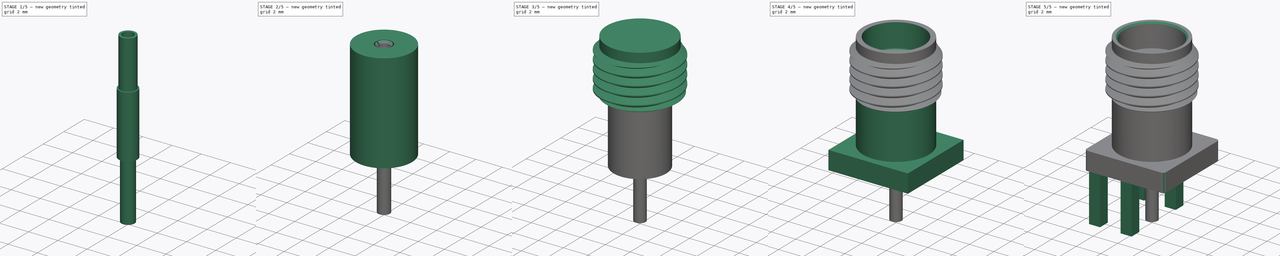
[diagram: build sequence overview — one tinted view per stage of 5, left to right]
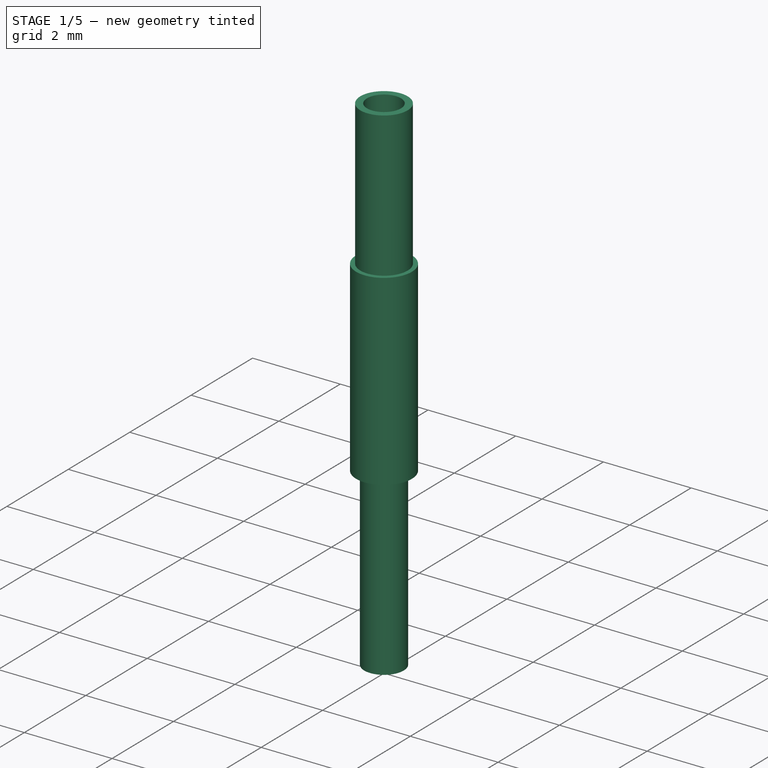
[diagram: stage 1 of 5 — iso view after this stage's code; geometry added in this stage tinted green]
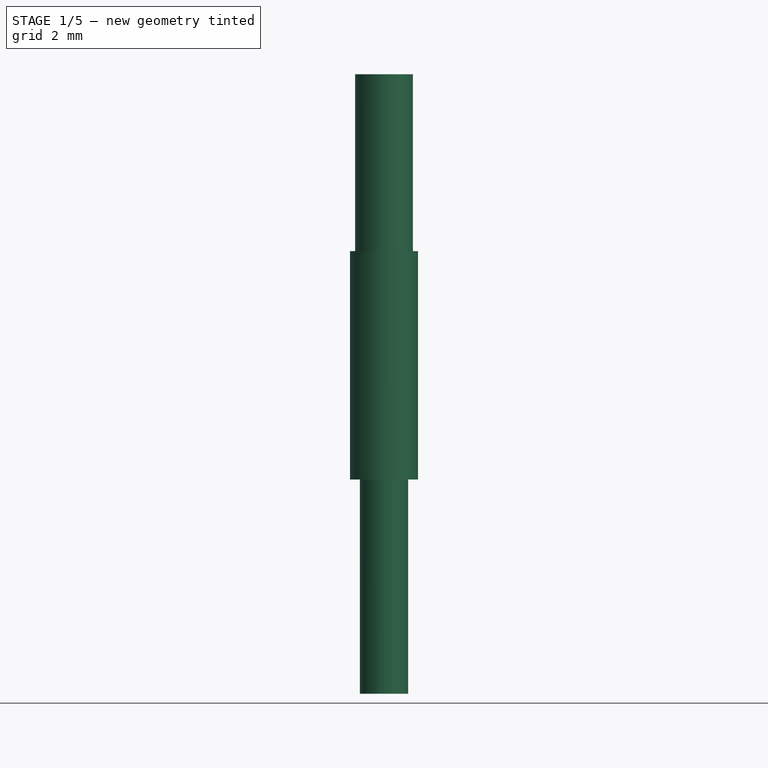
[diagram: stage 1 of 5 — front view after this stage's code; geometry added in this stage tinted green]
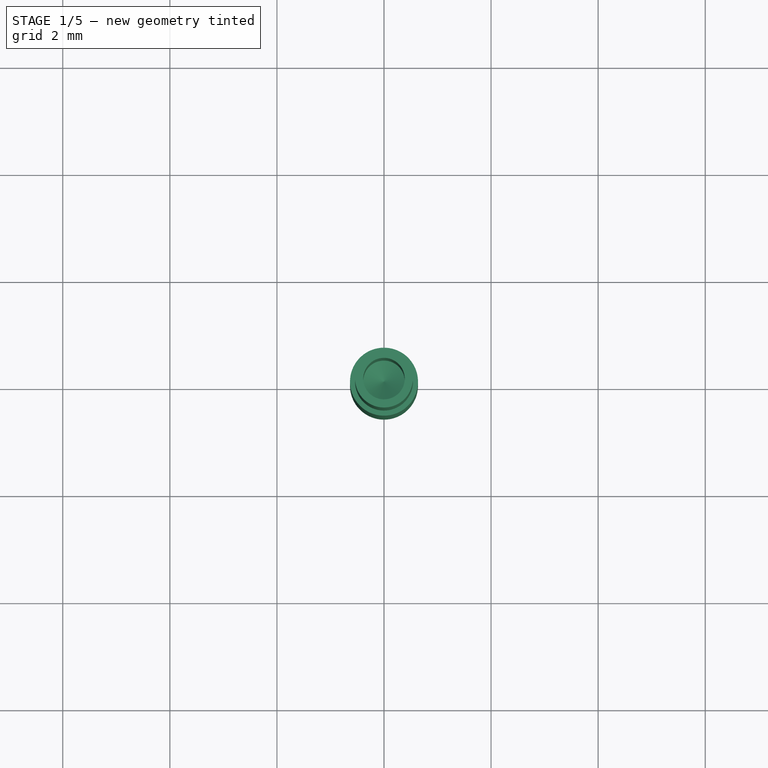
[diagram: stage 1 of 5 — top view after this stage's code; geometry added in this stage tinted green]
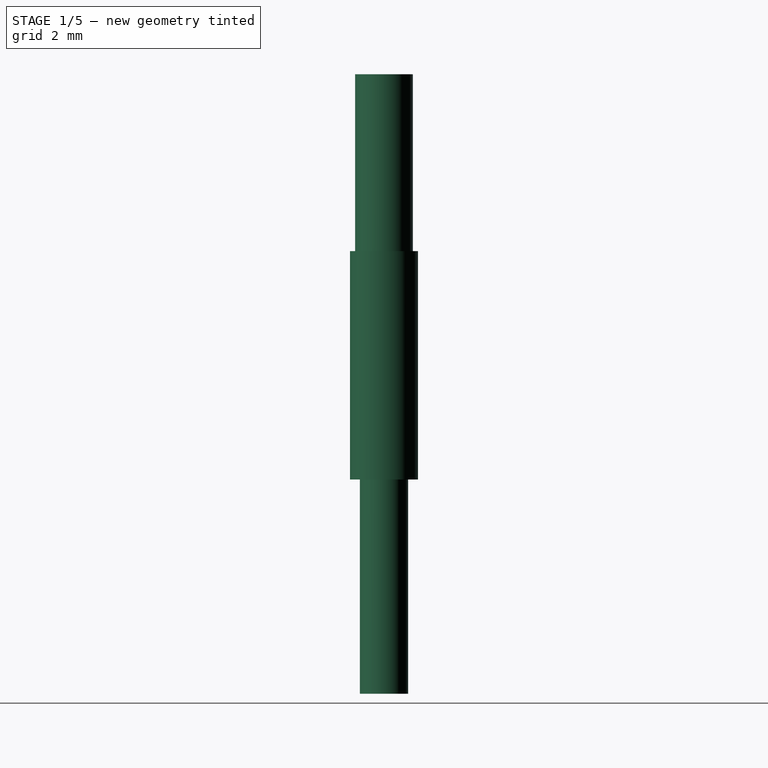
[diagram: stage 1 of 5 — right view after this stage's code; geometry added in this stage tinted green]
FCSTD DOCUMENT  (FreeCAD 2021.504R24301 +3597 (Git))
Label: SMA_female_edge_6.5x6.5_3
License: All rights reserved
LicenseURL: http://en.wikipedia.org/wiki/All_rights_reserved
objects: PartDesign::AdditiveCylinder×7, PartDesign::Plane×6, Sketcher::SketchObject×4, PartDesign::Hole×4, PartDesign::Body×3, PartDesign::Chamfer×2, Part::SubShapeBinder×2, PartDesign::SubtractiveHelix×1, PartDesign::Groove×1, PartDesign::AdditivePrism×1, PartDesign::Pad×1, PartDesign::Mirrored×1, PartDesign::Fillet×1, PartDesign::Pocket×1
note: 75 computed .brp shape members not serialized (recipe doc carries the construction recipe); baked Part::Feature solids carry a one-line shape summary decoded from their .brp

FEATURE [PartDesign::Body] Body001  label="Dielectric"
  AutoGroupSolids = false
  ExportMode = 0
  Group = -> [Import,Cylinder003,Hole002]
  Origin = -> Origin001
  Placement = pos=(0,-4,0.45) rot=(0.57735,-0.57735,0.57735;2.0944rad)
  Tip = -> Hole002
  _ExportChildren = -> [Import,Hole002]
  _GroupVersion = 1
FEATURE [Part::SubShapeBinder] Import001  label="Import001(Legs DP)"
  BindCopyOnChange = 0
  BindMode = 0
  ClaimChildren = false
  Context = -> Body002 [Import001.]
  FillStyle = 0
  Fuse = false
  MakeFace = false
  PartialLoad = false
  Relative = true
  Support = -> [Body[DatumPlane004.]]
  _Version = 8
FEATURE [PartDesign::AdditiveCylinder] Cylinder004  label="Core"
  Angle = 360
  AttacherType = Attacher::AttachEngine3D
  Height = 4.2676
  MapMode = 5
  NewSolid = false
  Placement = pos=(-5e-16,2e-16,-1.5) rot=(0,0,1;3.14159rad)
  Radius = 0.635
  Support = -> [Import001]
  Suppress = false
FEATURE [PartDesign::AdditiveCylinder] Cylinder005  label="Terminal"
  Angle = 360
  AttacherType = Attacher::AttachEngine3D
  BaseFeature = -> Cylinder004
  Height = 4
  MapMode = 5
  NewSolid = false
  Placement = pos=(-5e-16,2e-16,-1.5) rot=(1,0,0;3.14159rad)
  Radius = 0.45
  Support = -> [Import001]
  Suppress = false
FEATURE [PartDesign::Plane] DatumPlane005  label="Female O"
  Length = 10
  MapMode = 5
  MinimumLength = 10
  MinimumWidth = 10
  Placement = pos=(9e-16,4e-16,2.7676) rot=(0,0,1;0rad)
  ResizeMode = 0
  Support = -> [Cylinder005]
  Width = 10
FEATURE [PartDesign::AdditiveCylinder] Cylinder006  label="Female"
  Angle = 360
  AttacherType = Attacher::AttachEngine3D
  BaseFeature = -> Cylinder005
  Height = 3.302
  MapMode = 5
  NewSolid = false
  Placement = pos=(9e-16,4e-16,2.7676) rot=(0,0,1;0rad)
  Radius = 0.53975
  Support = -> [DatumPlane005]
  Suppress = false
FEATURE [PartDesign::Plane] DatumPlane006  label="Receptacle O"
  Length = 10
  MapMode = 5
  MinimumLength = 10
  MinimumWidth = 10
  Placement = pos=(2.1e-15,5e-16,6.0696) rot=(0,0,1;0rad)
  ResizeMode = 0
  Support = -> [Cylinder006]
  Width = 10
FEATURE [PartDesign::Hole] Hole003  label="Receptacle"
  BaseFeature = -> Cylinder006
  ClaimChildren = false
  CustomThreadClearance = 0
  Depth = 2.921
  DepthType = 0
  Diameter = 0.7747
  DrillForDepth = false
  DrillPoint = 1
  DrillPointAngle = 118
  Fit = 0
  FitJoin = 0
  HoleCutCountersinkAngle = 90
  HoleCutCustomValues = false
  HoleCutDepth = 0
  HoleCutDiameter = 6.1
  HoleCutType = 0
  InnerFit = 0
  InnerFitJoin = 0
  ModelThread = false
  NewSolid = false
  Placement = pos=(9e-16,4e-16,2.7676) rot=(0,0,1;0rad)
  Profile = -> Cylinder006 [Face6]
  Suppress = false
  Tapered = false
  TaperedAngle = 90
  ThreadClass = 0
  ThreadDepth = 2.921
  ThreadDepthType = 0
  ThreadDirection = 0
  ThreadFit = 0
  ThreadSize = 0
  ThreadType = 0
  Threaded = false
  UseCustomThreadClearance = false
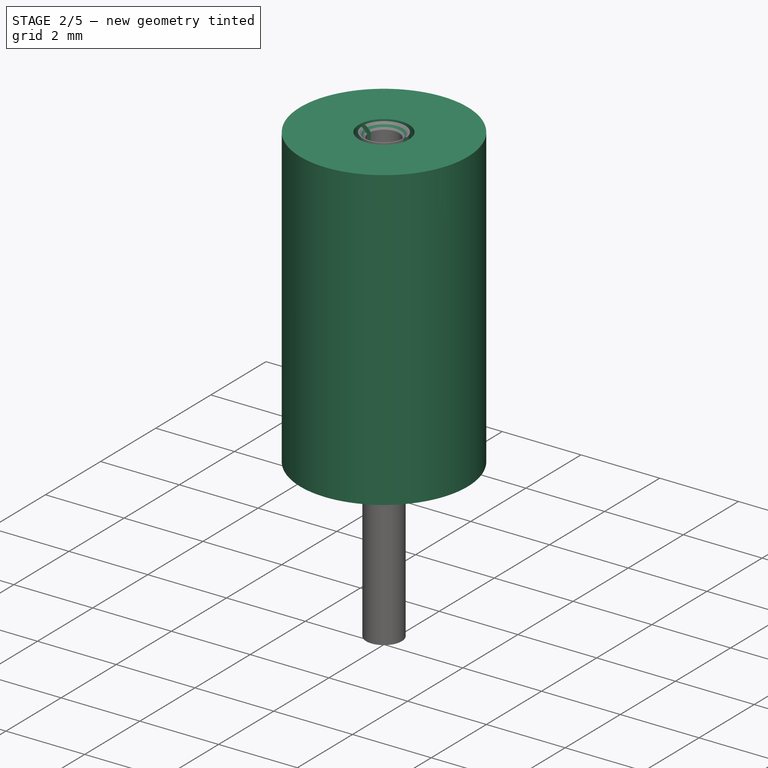
[diagram: stage 2 of 5 — iso view after this stage's code; geometry added in this stage tinted green]
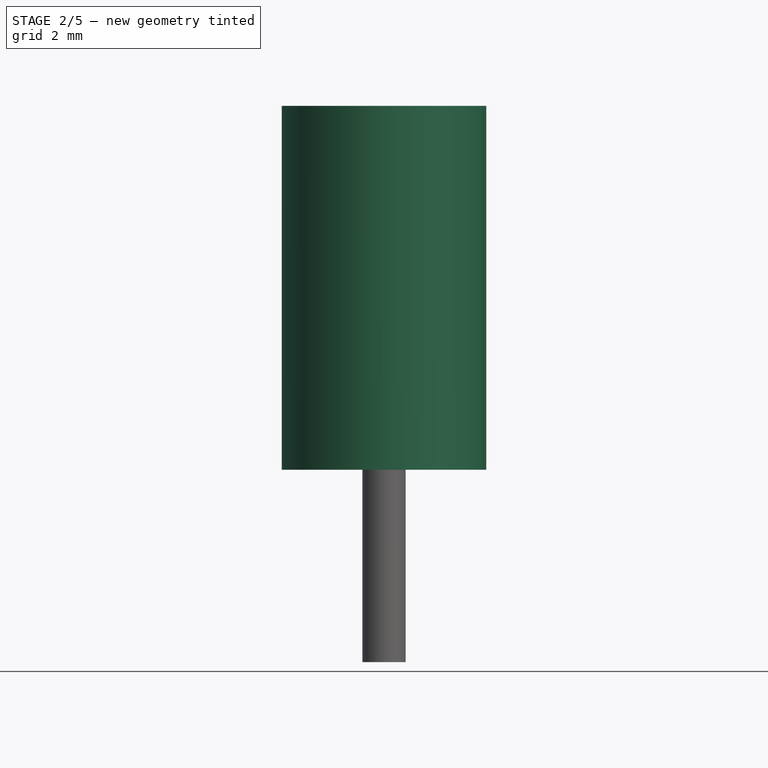
[diagram: stage 2 of 5 — front view after this stage's code; geometry added in this stage tinted green]
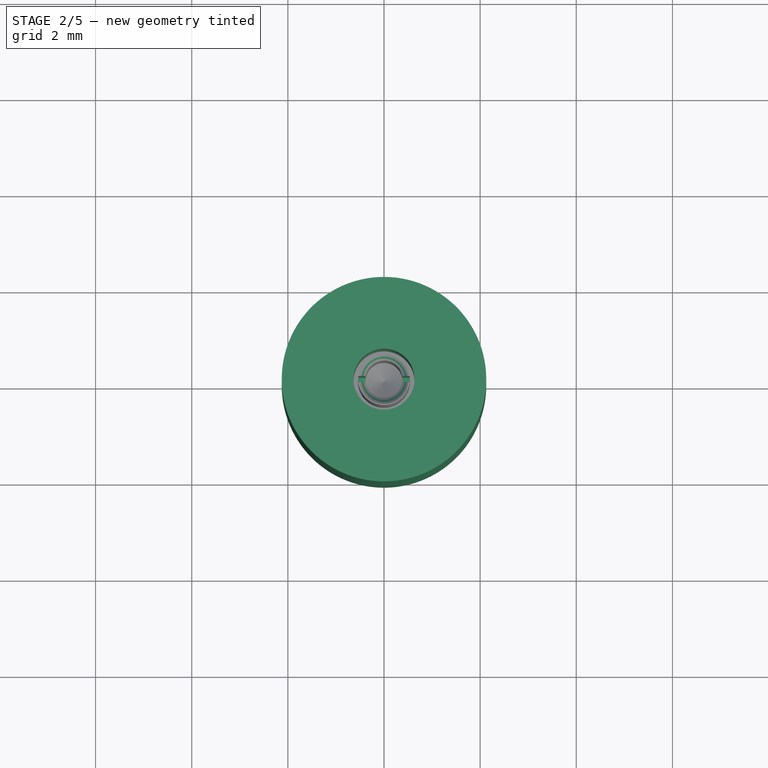
[diagram: stage 2 of 5 — top view after this stage's code; geometry added in this stage tinted green]
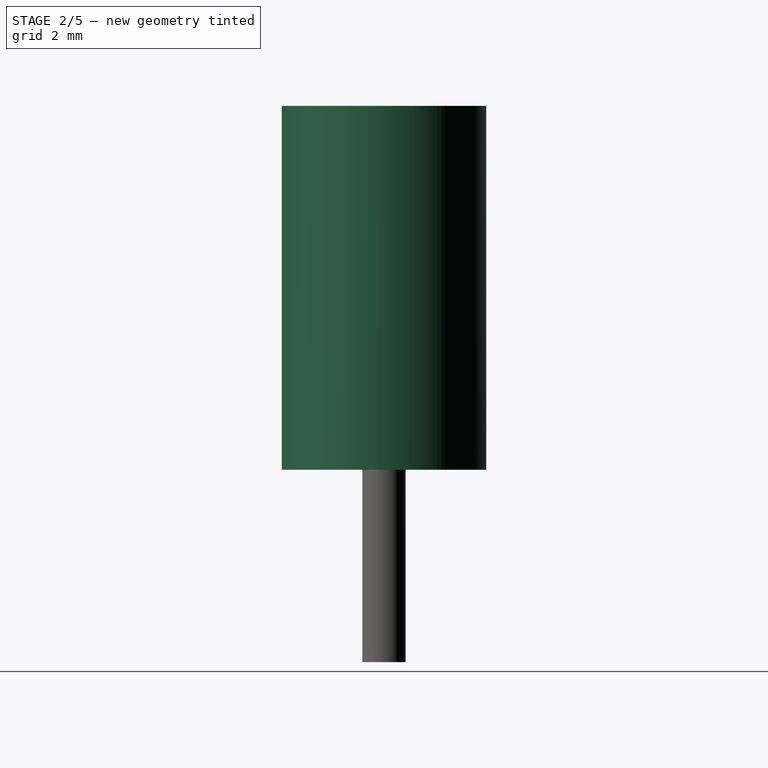
[diagram: stage 2 of 5 — right view after this stage's code; geometry added in this stage tinted green]
FEATURE [PartDesign::Plane] DatumPlane004  label="Legs DP"
  Length = 17.9643
  MapMode = 5
  MinimumLength = 10
  MinimumWidth = 10
  Placement = pos=(-5e-16,2e-16,-1.5) rot=(0.382683,0.92388,0;3.14159rad)
  ResizeMode = 0
  Support = -> [Fillet]
  Width = 17.9643
FEATURE [PartDesign::Body] Body
  AutoGroupSolids = false
  ExportMode = 0
  Group = -> [DatumPlane,Cylinder,Sketch,SubtractiveHelix,Sketch001,Groove,DatumPlane001,Cylinder001,Cylinder002,DatumPlane003,Prism,Hole,Hole001,Sketch002,Pad,DatumPlane004,Mirrored,Chamfer,Fillet]
  Origin = -> Origin
  Placement = pos=(0,-4,0.45) rot=(0.57735,-0.57735,0.57735;2.0944rad)
  Tip = -> Fillet
  _ExportChildren = -> [DatumPlane,Cylinder,SubtractiveHelix,Groove,DatumPlane001,Cylinder001,Cylinder002,DatumPlane003,Hole001,Pad,DatumPlane004,Mirrored,Chamfer,Fillet]
  _GroupVersion = 1
FEATURE [Part::SubShapeBinder] Import  label="Import(Legs DP)"
  BindCopyOnChange = 0
  BindMode = 0
  ClaimChildren = false
  Context = -> Body001 [Import.]
  FillStyle = 0
  Fuse = false
  MakeFace = false
  PartialLoad = false
  Relative = true
  Support = -> [Body[DatumPlane004.]]
  _Version = 8
FEATURE [PartDesign::AdditiveCylinder] Cylinder003  label="Solid"
  Angle = 360
  AttacherType = Attacher::AttachEngine3D
  Height = 7.5696
  MapMode = 5
  NewSolid = false
  Placement = pos=(-5e-16,2e-16,-1.5) rot=(0,0,1;3.14159rad)
  Radius = 2.1272
  Support = -> [Import]
  Suppress = false
FEATURE [PartDesign::Hole] Hole002  label="Thru"
  BaseFeature = -> Cylinder003
  ClaimChildren = false
  CustomThreadClearance = 0
  Depth = 25
  DepthType = 1
  Diameter = 1.2701
  DrillForDepth = false
  DrillPoint = 1
  DrillPointAngle = 118
  Fit = 0
  FitJoin = 0
  HoleCutCountersinkAngle = 90
  HoleCutCustomValues = false
  HoleCutDepth = 0
  HoleCutDiameter = 6.1
  HoleCutType = 0
  InnerFit = 0
  InnerFitJoin = 0
  ModelThread = false
  NewSolid = false
  Placement = pos=(-5e-16,2e-16,-1.5) rot=(0,0,1;3.14159rad)
  Profile = -> Cylinder003 [Face3]
  Suppress = false
  Tapered = false
  TaperedAngle = 90
  ThreadClass = 0
  ThreadDepth = 19.5325
  ThreadDepthType = 0
  ThreadDirection = 0
  ThreadFit = 0
  ThreadSize = 0
  ThreadType = 0
  Threaded = false
  UseCustomThreadClearance = false
FEATURE [Sketcher::SketchObject] Sketch003  label="Slit"
  ExternalGeometry = -> [Hole003]
  FullyConstrained = true
  MapMode = 5
  Placement = pos=(2.1e-15,5e-16,6.0696) rot=(0,0,1;0rad)
  Support = -> [DatumPlane006]
  sketch-geometry (4):
    g0: LineSegment StartX=-0.635 StartY=0.0635 StartZ=0 EndX=0.635 EndY=0.0635 EndZ=0
    g1: LineSegment StartX=0.635 StartY=0.0635 StartZ=0 EndX=0.635 EndY=-0.0635 EndZ=0
    g2: LineSegment StartX=0.635 StartY=-0.0635 StartZ=0 EndX=-0.635 EndY=-0.0635 EndZ=0
    g3: LineSegment StartX=-0.635 StartY=-0.0635 StartZ=0 EndX=-0.635 EndY=0.0635 EndZ=0
  constraints (11):
    c: Coincident(g0,g1)
    c: Coincident(g1,g2)
    c: Coincident(g2,g3)
    c: Coincident(g3,g0)
    c: Horizontal(g0)
    c: Horizontal(g2)
    c: Vertical(g1)
    c: Vertical(g3)
    c: Symmetric(g0,g1,g-1)
    c: Tangent(g1,g-3)
    c: DistanceY(g1,g0) = 0.127
FEATURE [PartDesign::Pocket] Pocket  label="Slot"
  BaseFeature = -> Hole003
  ClaimChildren = false
  Fit = 0
  FitJoin = 0
  InnerFit = 0
  InnerFitJoin = 0
  InnerTaperAngle = 0
  InnerTaperAngleRev = 0
  Length = 2.032
  Length2 = 100
  NewSolid = false
  Placement = pos=(9e-16,4e-16,2.7676) rot=(0,0,1;0rad)
  Profile = -> Sketch003
  Suppress = false
  Type = 0
FEATURE [PartDesign::Chamfer] Chamfer001  label="Female chamfer"
  Angle = 45
  Base = -> Pocket [Edge19,Edge27]
  BaseFeature = -> Pocket
  ChamferType = 0
  FlipDirection = false
  NewSolid = false
  Placement = pos=(9e-16,4e-16,2.7676) rot=(0,0,1;0rad)
  Size = 0.127
  Size2 = 1
  SupportTransform = false
  Suppress = false
FEATURE [PartDesign::Body] Body002  label="Pin"
  AutoGroupSolids = false
  ExportMode = 0
  Group = -> [Import001,Cylinder004,Cylinder005,DatumPlane005,Cylinder006,Hole003,DatumPlane006,Sketch003,Pocket,Chamfer001]
  Origin = -> Origin002
  Placement = pos=(0,-4,0.45) rot=(0.57735,-0.57735,0.57735;2.0944rad)
  Tip = -> Chamfer001
  _ExportChildren = -> [Import001,Cylinder004,Cylinder005,DatumPlane005,Hole003,DatumPlane006,Pocket,Chamfer001]
  _GroupVersion = 1
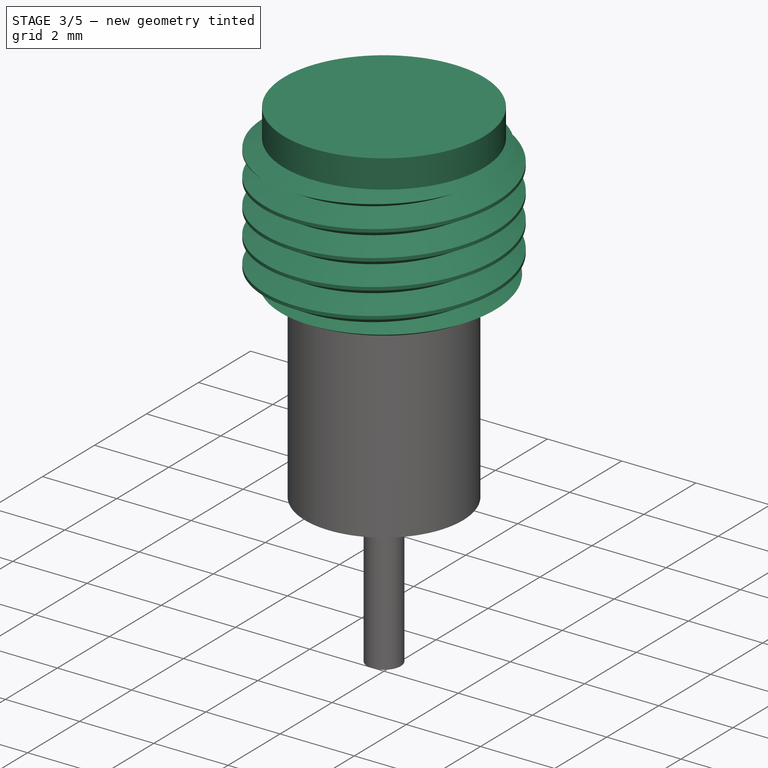
[diagram: stage 3 of 5 — iso view after this stage's code; geometry added in this stage tinted green]
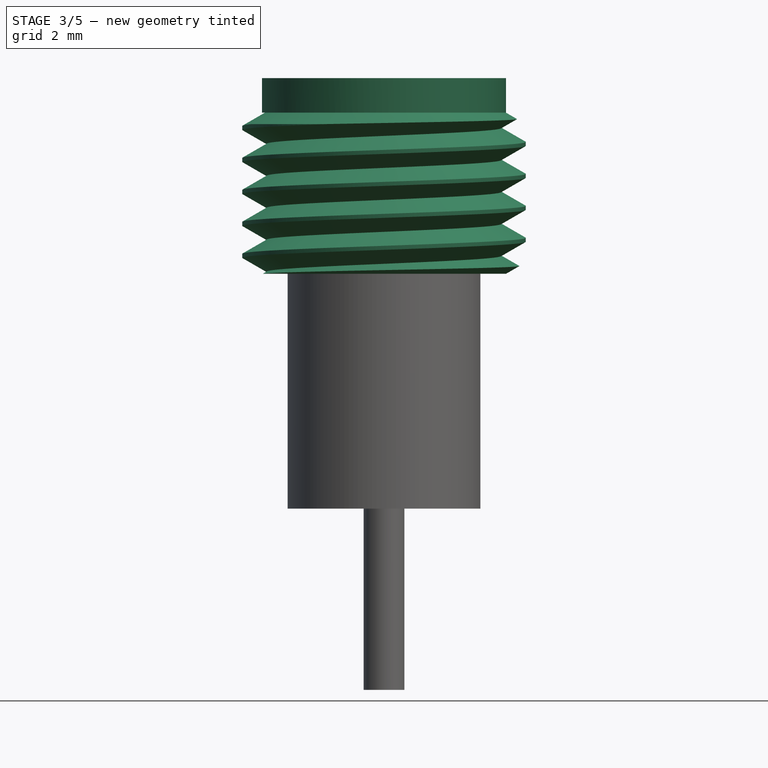
[diagram: stage 3 of 5 — front view after this stage's code; geometry added in this stage tinted green]
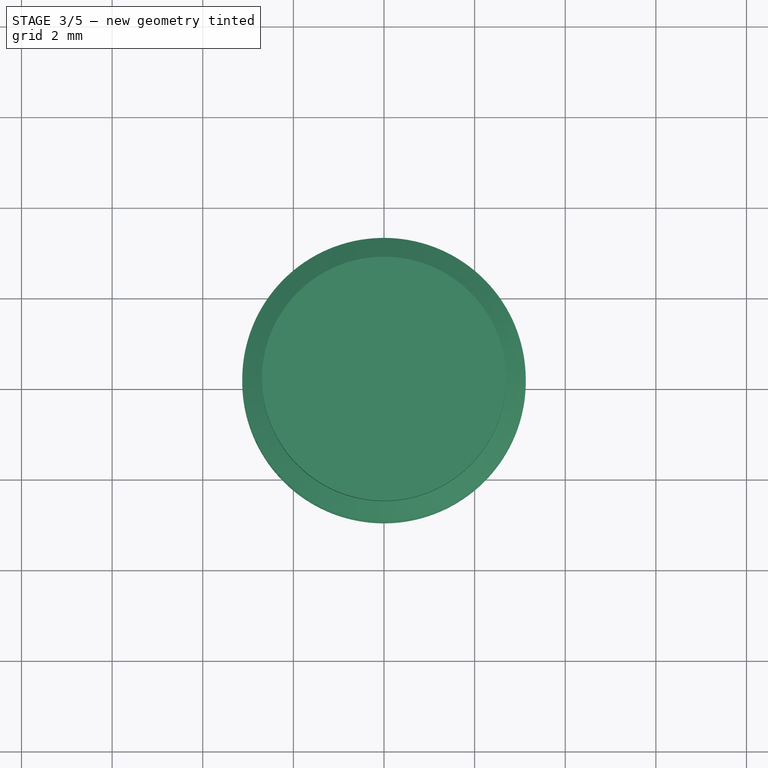
[diagram: stage 3 of 5 — top view after this stage's code; geometry added in this stage tinted green]
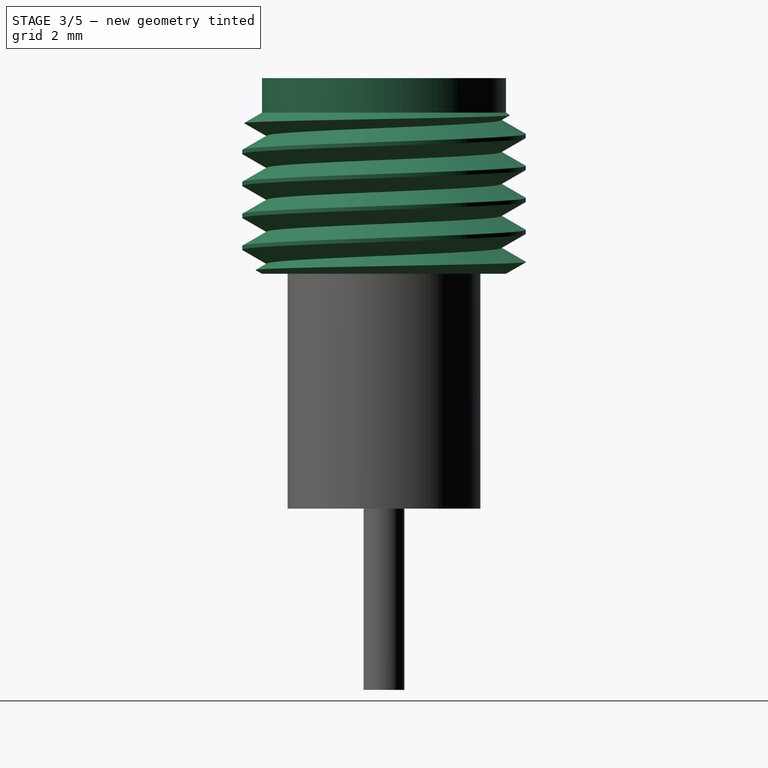
[diagram: stage 3 of 5 — right view after this stage's code; geometry added in this stage tinted green]
FEATURE [PartDesign::Plane] DatumPlane  label="Thread DP"
  AttachmentOffset = pos=(0,0,3.682) rot=(0,0,1;0rad)
  Length = 10
  MapMode = 5
  MinimumLength = 10
  MinimumWidth = 10
  Placement = pos=(0,0,3.682) rot=(0,0,1;0rad)
  ResizeMode = 0
  Support = -> [XY_Plane]
  Width = 10
FEATURE [PartDesign::AdditiveCylinder] Cylinder  label="Collar"
  Angle = 360
  AttacherType = Attacher::AttachEngine3D
  Height = 3.556
  MapMode = 5
  NewSolid = false
  Placement = pos=(0,0,3.682) rot=(0,0,1;0rad)
  Radius = 3.12864
  Support = -> [DatumPlane]
  Suppress = false
FEATURE [Sketcher::SketchObject] Sketch  label="Thread cutter"
  ExternalGeometry = -> [Cylinder]
  FullyConstrained = true
  MapMode = 5
  Placement = pos=(0,0,0) rot=(1,0,0;1.5708rad)
  Support = -> [XZ_Plane]
  expr: .Constraints[11] = .Constraints.Pitch / 16
  sketch-geometry (5):
    g0: LineSegment StartX=3.20502 StartY=3.7261 StartZ=0 EndX=2.59399 EndY=3.37332 EndZ=0
    g1: LineSegment StartX=2.59399 StartY=3.37332 StartZ=0 EndX=3.20502 EndY=3.02054 EndZ=0
    g2: LineSegment StartX=3.20502 StartY=3.02054 StartZ=0 EndX=3.20502 EndY=3.7261 EndZ=0
    g3: Circle [constr] CenterX=3.00135 CenterY=3.37332 CenterZ=0 NormalX=0 NormalY=0 NormalZ=1 AngleXU=0 Radius=0.407353
    g4: GeomPoint [constr] X=3.12865 Y=3.682 Z=0
  constraints (14):
    c: Coincident(g0,g1)
    c: Coincident(g1,g2)
    c: Coincident(g2,g0)
    c: Equal(g0,g1)
    c: Equal(g0,g2)
    c: PointOnObject(g0,g3)
    c: PointOnObject(g1,g3)
    c: PointOnObject(g2,g3)
    c: Vertical(g2)
    c: DistanceY(g1,g0) = 0.705556  'Pitch'
    c: PointOnObject(g4,g0)
    c: DistanceY(g4,g0) = 0.0440972
    c: PointOnObject(g4,g-3)
    c: DistanceX(g-1,g4) = 3.12865  'Major axis'
FEATURE [Sketcher::SketchObject] Sketch001  label="Thread groover "
  ExternalGeometry = -> [Cylinder]
  FullyConstrained = true
  MapMode = 5
  Placement = pos=(0,0,0) rot=(1,0,0;1.5708rad)
  Support = -> [Sketch]
  sketch-geometry (8):
    g0: LineSegment StartX=0 StartY=8.79246 StartZ=0 EndX=5.77199 EndY=5.46 EndZ=0
    g1: LineSegment StartX=5.77199 StartY=5.46 StartZ=0 EndX=7.73008e-11 EndY=2.12754 EndZ=0
    g2: LineSegment StartX=7.73008e-11 StartY=2.12754 StartZ=0 EndX=5.77199 EndY=2.12754 EndZ=0
    g3: LineSegment StartX=5.77199 StartY=2.12754 StartZ=0 EndX=5.77199 EndY=8.79246 EndZ=0
    g4: LineSegment StartX=5.77199 StartY=8.79246 StartZ=0 EndX=0 EndY=8.79246 EndZ=0
    g5: GeomPoint [constr] X=2.6924 Y=7.238 Z=0
    g6: GeomPoint [constr] X=2.6924 Y=3.682 Z=0
    g7: LineSegment [constr] StartX=2.6924 StartY=7.238 StartZ=0 EndX=2.6924 EndY=3.682 EndZ=0
  constraints (21):
    c: Coincident(g1,g2)
    c: Horizontal(g2)
    c: Coincident(g2,g3)
    c: Vertical(g3)
    c: Coincident(g3,g4)
    c: Coincident(g4,g0)
    c: Horizontal(g4)
    c: Angle(g2,g1) = 0.523599
    c: Angle(g0,g4) = 0.523599
    c: PointOnObject(g5,g0)
    c: PointOnObject(g5,g-3)
    c: Equal(g0,g1)
    c: PointOnObject(g6,g1)
    c: PointOnObject(g6,g-4)
    c: Coincident(g7,g5)
    c: Coincident(g7,g6)
    c: Vertical(g7)
    c: DistanceX(g-1,g6) = 2.6924
    c: Coincident(g0,g1)
    c: PointOnObject(g0,g3)
    c: PointOnObject(g0,g-2)
FEATURE [PartDesign::SubtractiveHelix] SubtractiveHelix  label="Thread"
  Angle = 0
  Axis = (0,-2e-16,1)
  Base = (0,0,0)
  BaseFeature = -> Cylinder
  ClaimChildren = false
  Fit = 0
  FitJoin = 0
  HasBeenEdited = true
  Height = 4.93889
  InnerFit = 0
  InnerFitJoin = 0
  LeftHanded = false
  Mode = 1
  NewSolid = false
  Outside = false
  Pitch = 0.705556
  Placement = pos=(0,0,3.682) rot=(0,0,1;0rad)
  Profile = -> Sketch
  ReferenceAxis = -> Sketch [V_Axis]
  Suppress = false
  Turns = 7
FEATURE [PartDesign::Groove] Groove  label="Thread Groove"
  Angle = 360
  Axis = (0,-2e-16,1)
  Base = (0,0,0)
  BaseFeature = -> SubtractiveHelix
  ClaimChildren = false
  Fit = 0
  FitJoin = 0
  InnerFit = 0
  InnerFitJoin = 0
  NewSolid = false
  Placement = pos=(0,0,3.682) rot=(0,0,1;0rad)
  Profile = -> Sketch001
  ReferenceAxis = -> Sketch001 [V_Axis]
  Suppress = false
FEATURE [PartDesign::Plane] DatumPlane001  label="Mouth DP"
  Length = 13
  MapMode = 5
  MinimumLength = 10
  MinimumWidth = 10
  Placement = pos=(0,0,7.238) rot=(0,0,1;0rad)
  ResizeMode = 0
  Support = -> [Groove]
  Width = 13
FEATURE [PartDesign::AdditiveCylinder] Cylinder001  label="Mouth"
  Angle = 360
  AttacherType = Attacher::AttachEngine3D
  BaseFeature = -> Groove
  Height = 0.762
  MapMode = 5
  NewSolid = false
  Placement = pos=(0,0,7.238) rot=(0,0,1;0rad)
  Radius = 2.6924
  Support = -> [DatumPlane001]
  Suppress = false
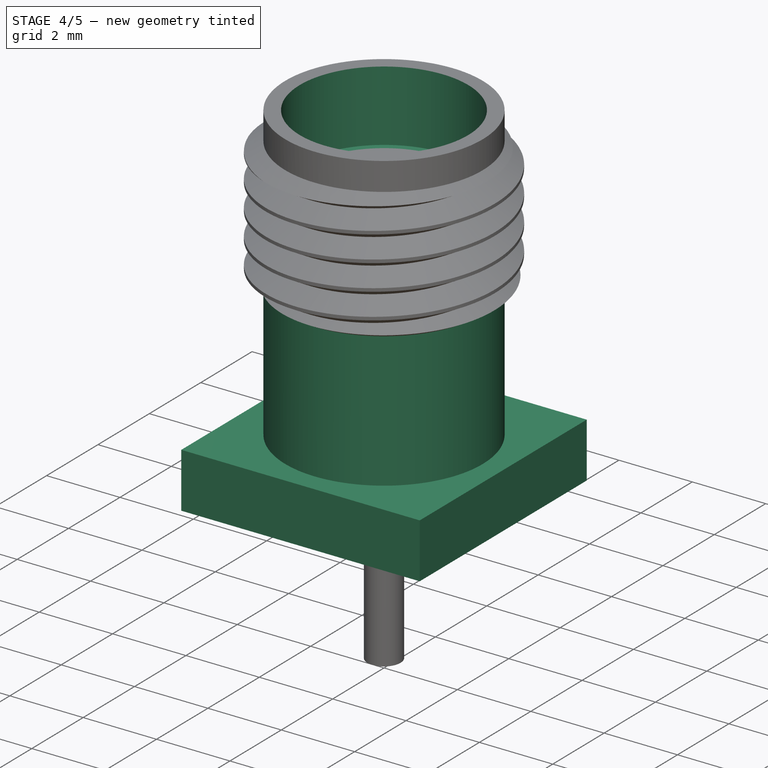
[diagram: stage 4 of 5 — iso view after this stage's code; geometry added in this stage tinted green]
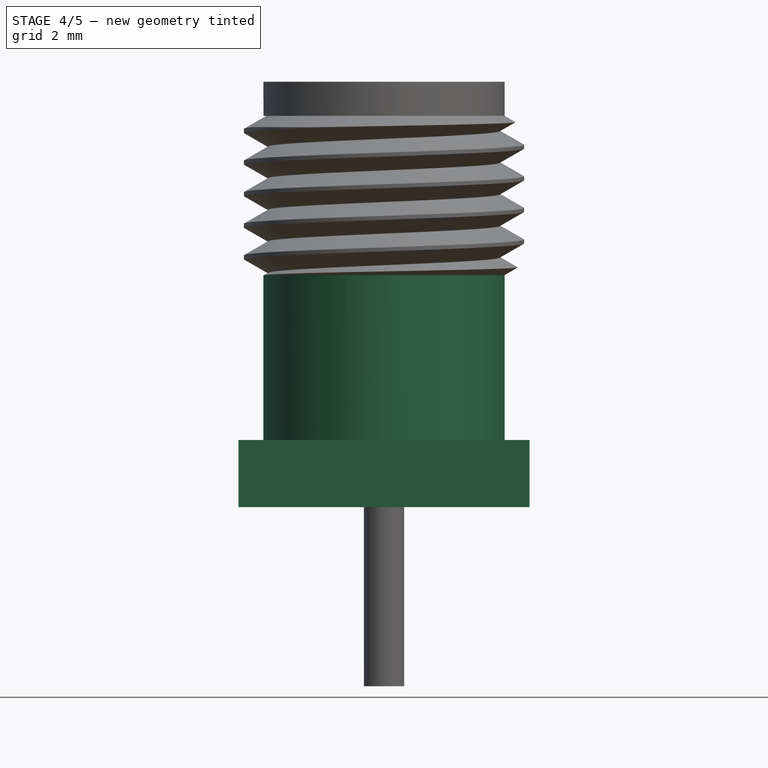
[diagram: stage 4 of 5 — front view after this stage's code; geometry added in this stage tinted green]
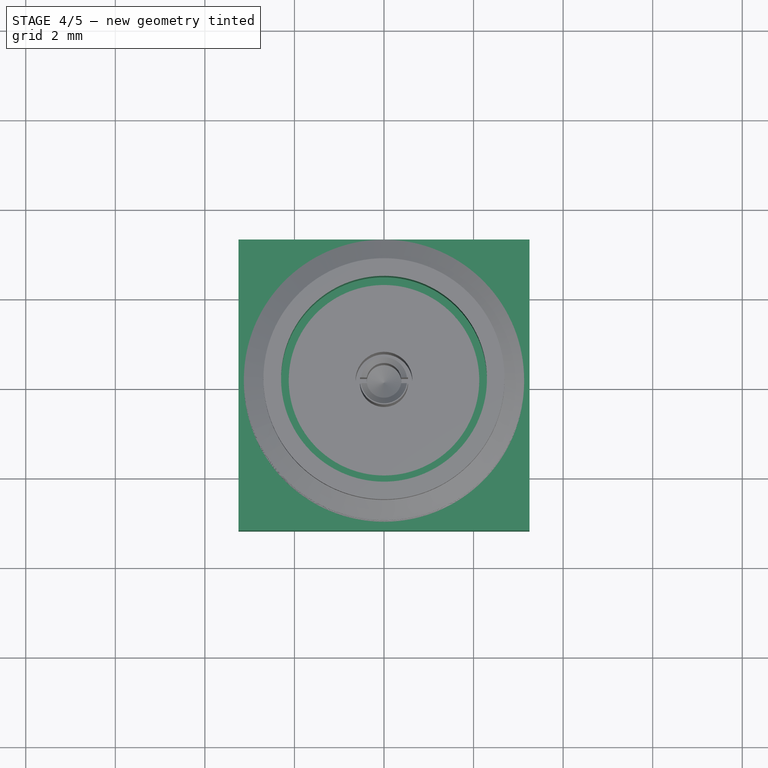
[diagram: stage 4 of 5 — top view after this stage's code; geometry added in this stage tinted green]
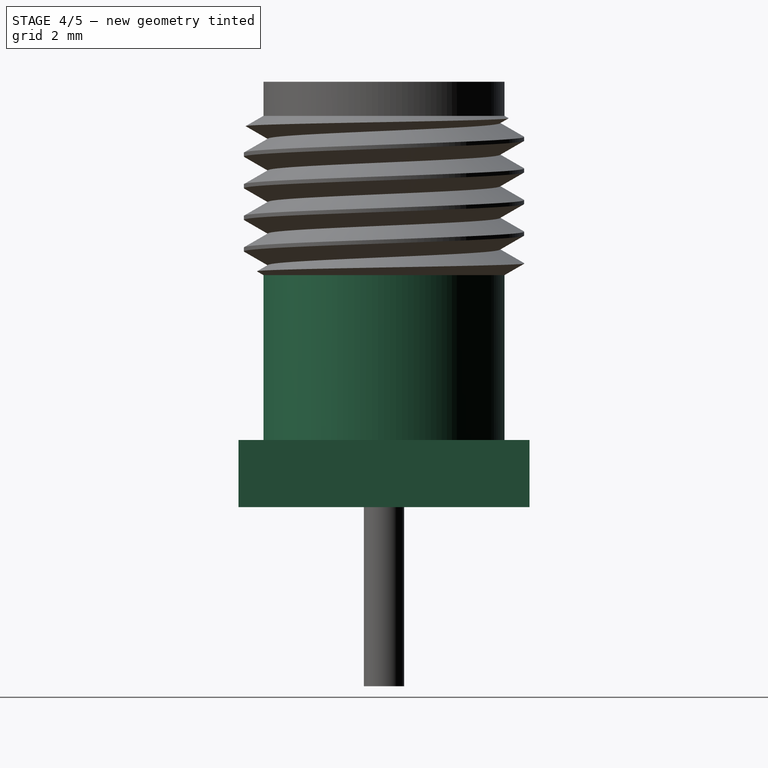
[diagram: stage 4 of 5 — right view after this stage's code; geometry added in this stage tinted green]
FEATURE [PartDesign::AdditiveCylinder] Cylinder002  label="Bottom"
  Angle = 360
  AttacherType = Attacher::AttachEngine3D
  BaseFeature = -> Cylinder001
  Height = 3.682
  MapMode = 5
  NewSolid = false
  Placement = pos=(0,0,3.682) rot=(0,1,0;3.14159rad)
  Radius = 2.6924
  Support = -> [DatumPlane]
  Suppress = false
FEATURE [PartDesign::Plane] DatumPlane003  label="Base DP"
  Length = 12.7027
  MapMode = 5
  MinimumLength = 10
  MinimumWidth = 10
  Placement = pos=(0,0,-4e-16) rot=(0,1,0;3.14159rad)
  ResizeMode = 0
  Support = -> [Cylinder002]
  Width = 12.7027
FEATURE [PartDesign::AdditivePrism] Prism
  AttacherType = Attacher::AttachEngine3D
  AttachmentOffset = pos=(0,0,0) rot=(0,0,1;0.785398rad)
  BaseFeature = -> Cylinder002
  Circumradius = 4.59619
  FirstAngle = 0
  Height = 1.5
  MapMode = 5
  NewSolid = false
  Placement = pos=(0,0,-4e-16) rot=(0.382683,0.92388,0;3.14159rad)
  Polygon = 4
  SecondAngle = 0
  Support = -> [DatumPlane003]
  Suppress = false
FEATURE [PartDesign::Hole] Hole  label="Mouth hole"
  BaseFeature = -> Prism
  ClaimChildren = false
  CustomThreadClearance = 0
  Depth = 1.9304
  DepthType = 0
  Diameter = 4.5974
  DrillForDepth = false
  DrillPoint = 0
  DrillPointAngle = 118
  Fit = 0
  FitJoin = 0
  HoleCutCountersinkAngle = 90
  HoleCutCustomValues = false
  HoleCutDepth = 0
  HoleCutDiameter = 6.1
  HoleCutType = 0
  InnerFit = 0
  InnerFitJoin = 0
  ModelThread = false
  NewSolid = false
  Placement = pos=(0,0,-4e-16) rot=(0.382683,0.92388,0;3.14159rad)
  Profile = -> Prism [Face16]
  Suppress = false
  Tapered = false
  TaperedAngle = 90
  ThreadClass = 0
  ThreadDepth = 1.9304
  ThreadDepthType = 0
  ThreadDirection = 0
  ThreadFit = 0
  ThreadSize = 0
  ThreadType = 0
  Threaded = false
  UseCustomThreadClearance = false
FEATURE [PartDesign::Hole] Hole001  label="Coaxial hole"
  BaseFeature = -> Hole
  ClaimChildren = false
  CustomThreadClearance = 0
  Depth = 25
  DepthType = 1
  Diameter = 4.2545
  DrillForDepth = false
  DrillPoint = 1
  DrillPointAngle = 118
  Fit = 0
  FitJoin = 0
  HoleCutCountersinkAngle = 90
  HoleCutCustomValues = false
  HoleCutDepth = 0
  HoleCutDiameter = 6.1
  HoleCutType = 0
  InnerFit = 0
  InnerFitJoin = 0
  ModelThread = false
  NewSolid = false
  Placement = pos=(0,0,-4e-16) rot=(0.382683,0.92388,0;3.14159rad)
  Profile = -> Hole [Face24]
  Suppress = false
  Tapered = false
  TaperedAngle = 90
  ThreadClass = 0
  ThreadDepth = 26.703
  ThreadDepthType = 0
  ThreadDirection = 0
  ThreadFit = 0
  ThreadSize = 0
  ThreadType = 0
  Threaded = false
  UseCustomThreadClearance = false
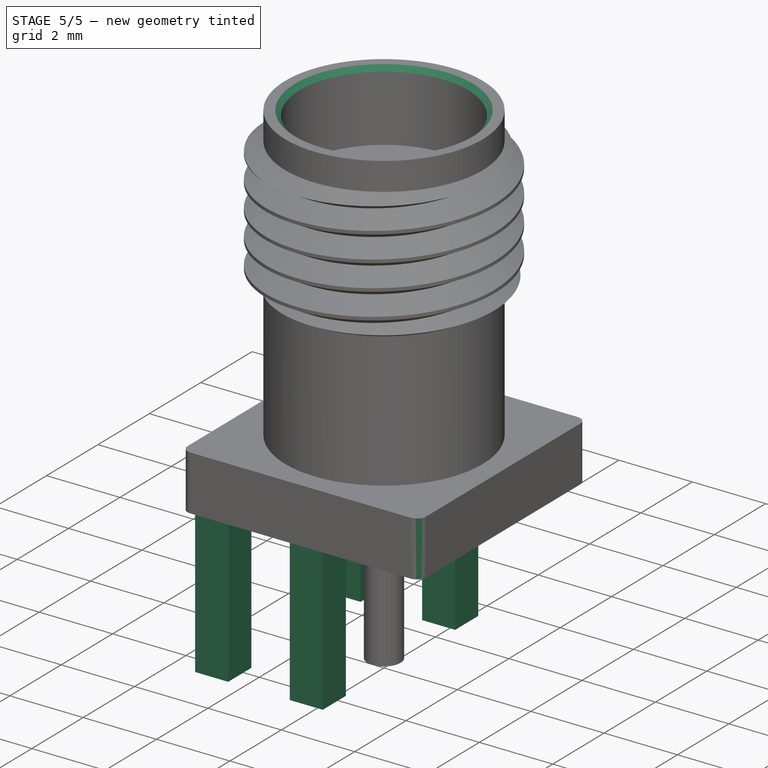
[diagram: stage 5 of 5 — iso view after this stage's code; geometry added in this stage tinted green]
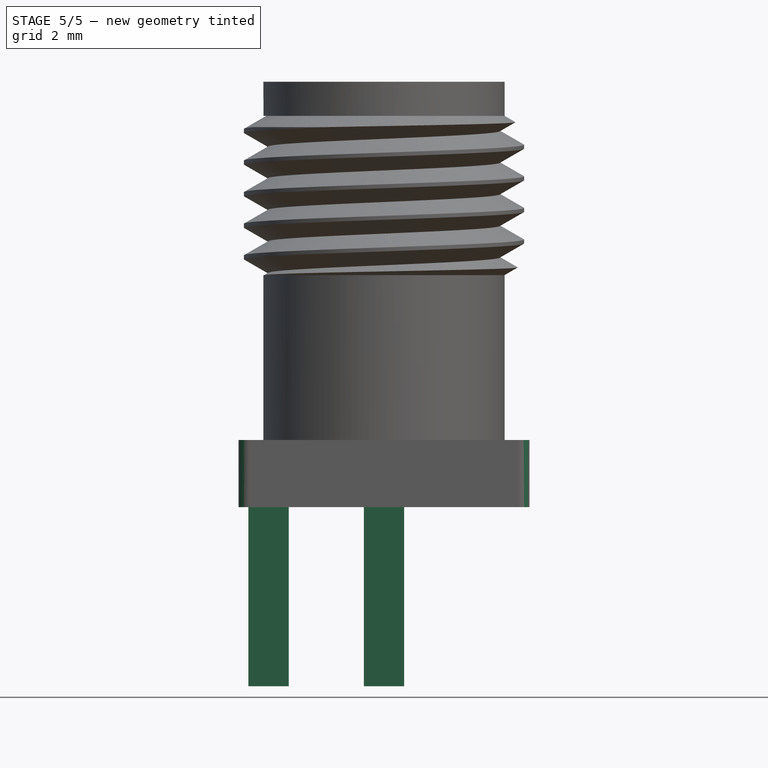
[diagram: stage 5 of 5 — front view after this stage's code; geometry added in this stage tinted green]
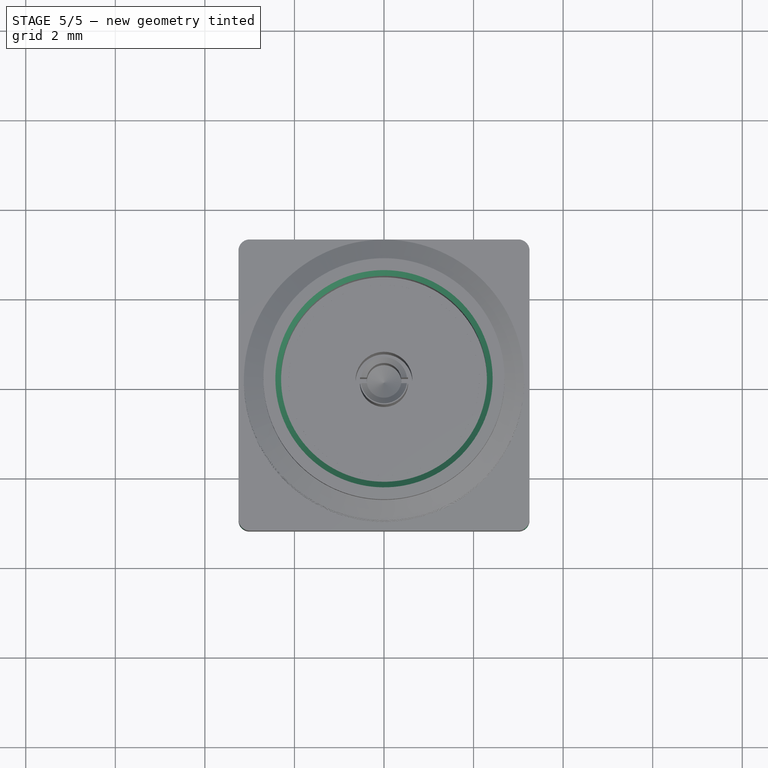
[diagram: stage 5 of 5 — top view after this stage's code; geometry added in this stage tinted green]
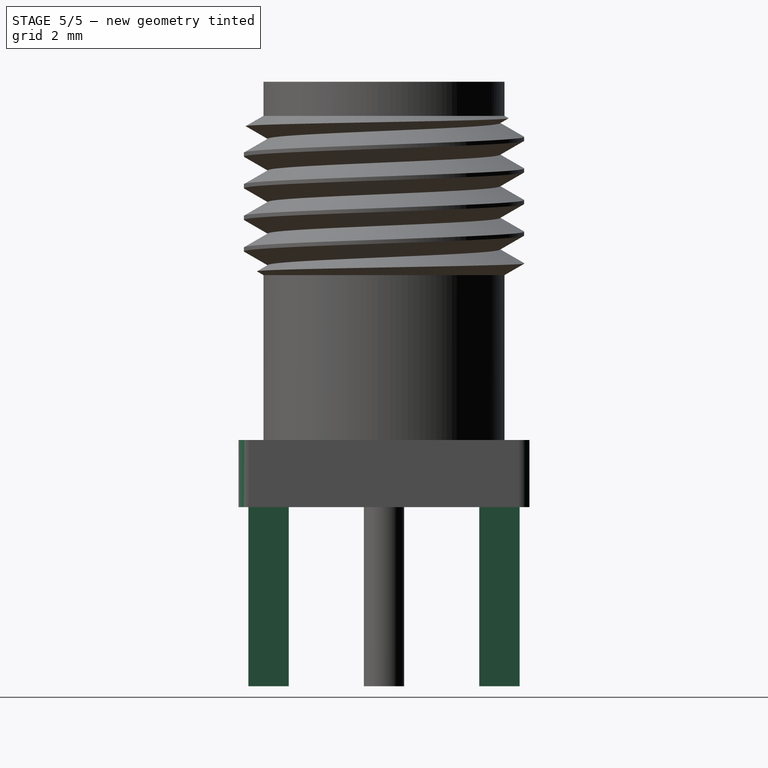
[diagram: stage 5 of 5 — right view after this stage's code; geometry added in this stage tinted green]
FEATURE [Sketcher::SketchObject] Sketch002  label="Two legs sketch"
  ExternalGeometry = -> [Hole001]
  FullyConstrained = true
  MapMode = 5
  Placement = pos=(-3e-16,1e-16,-1.5) rot=(0.382683,0.92388,0;3.14159rad)
  Support = -> [Hole001]
  sketch-geometry (9):
    g0: LineSegment StartX=-1.18599 StartY=-1.82239 StartZ=0 EndX=-1.82239 EndY=-2.45879 EndZ=0
    g1: LineSegment StartX=-1.82239 StartY=-2.45879 StartZ=0 EndX=-2.45879 EndY=-1.82239 EndZ=0
    g2: LineSegment StartX=-2.45879 StartY=-1.82239 StartZ=0 EndX=-1.82239 EndY=-1.18599 EndZ=0
    g3: LineSegment StartX=-1.82239 StartY=-1.18599 StartZ=0 EndX=-1.18599 EndY=-1.82239 EndZ=0
    g4: LineSegment [constr] StartX=-5e-16 StartY=-6e-16 StartZ=0 EndX=-2.14059 EndY=-2.14059 EndZ=0
    g5: LineSegment StartX=0.636396 StartY=-3.64478 StartZ=0 EndX=0 EndY=-4.28118 EndZ=0
    g6: LineSegment StartX=0 StartY=-4.28118 StartZ=0 EndX=-0.636396 EndY=-3.64478 EndZ=0
    g7: LineSegment StartX=-0.636396 StartY=-3.64478 StartZ=0 EndX=1e-16 EndY=-3.00839 EndZ=0
    g8: LineSegment StartX=1e-16 StartY=-3.00839 StartZ=0 EndX=0.636396 EndY=-3.64478 EndZ=0
  constraints (26):
    c: Coincident(g0,g1)
    c: Coincident(g1,g2)
    c: Coincident(g2,g3)
    c: Coincident(g3,g0)
    c: Parallel(g0,g-3)
    c: Parallel(g1,g-4)
    c: Parallel(g2,g0)
    c: Parallel(g3,g1)
    c: Equal(g0,g1)
    c: Distance(g1) = 0.9
    c: Coincident(g4,g-5)
    c: Symmetric(g0,g2,g4)
    c: Tangent(g3,g-5)
    c: Coincident(g5,g6)
    c: Coincident(g6,g7)
    c: Coincident(g7,g8)
    c: Coincident(g8,g5)
    c: Parallel(g5,g7)
    c: Parallel(g6,g8)
    c: Equal(g5,g6)
    c: Parallel(g5,g-3)
    c: Parallel(g6,g-4)
    c: PointOnObject(g0,g8)
    c: Equal(g6,g1)
    c: PointOnObject(g4,g1)
    c: PointOnObject(g5,g-2)
FEATURE [PartDesign::Pad] Pad  label="Base"
  BaseFeature = -> Hole001
  ClaimChildren = false
  Direction = (1,1,1)
  Fit = 0
  FitJoin = 0
  InnerFit = 0
  InnerFitJoin = 0
  InnerTaperAngle = 0
  InnerTaperAngleRev = 0
  Length = 4
  Length2 = 100
  NewSolid = false
  Placement = pos=(0,0,-4e-16) rot=(0.382683,0.92388,0;3.14159rad)
  Profile = -> Sketch002
  Suppress = false
  Type = 0
FEATURE [PartDesign::Mirrored] Mirrored  label="Legs"
  BaseFeature = -> Pad
  CopyShape = false
  MirrorPlane = -> XZ_Plane
  NewSolid = false
  OriginalSubs = -> [Pad]
  Originals = -> [Pad]
  ParallelTransform = true
  Placement = pos=(0,0,-4e-16) rot=(0.382683,0.92388,0;3.14159rad)
  SubTransform = true
  Suppress = false
FEATURE [PartDesign::Chamfer] Chamfer  label="Mouth chamfer"
  Angle = 45
  Base = -> Mirrored [Edge36]
  BaseFeature = -> Mirrored
  ChamferType = 0
  FlipDirection = false
  NewSolid = false
  Placement = pos=(0,0,-4e-16) rot=(0.382683,0.92388,0;3.14159rad)
  Size = 0.127
  Size2 = 1
  SupportTransform = false
  Suppress = false
FEATURE [PartDesign::Fillet] Fillet  label="Base fillet"
  Base = -> Chamfer [Edge65,Edge66,Edge70,Edge68]
  BaseFeature = -> Chamfer
  NewSolid = false
  Placement = pos=(0,0,-4e-16) rot=(0.382683,0.92388,0;3.14159rad)
  Radius = 0.25
  SupportTransform = false
  Suppress = false
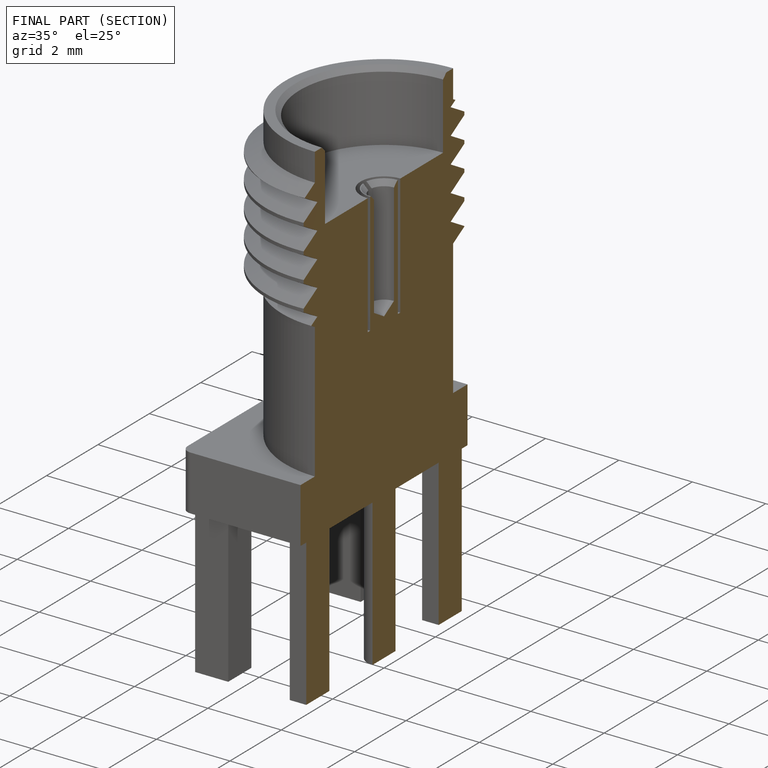
[diagram: finished part — half-section view (interior)]
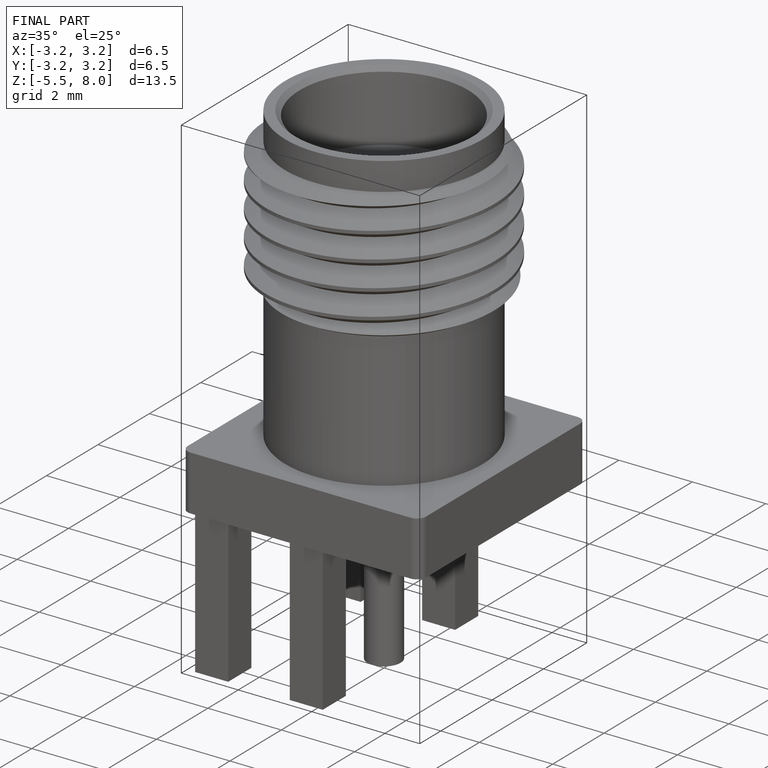
[diagram: finished part — iso view with bounding-box wireframe]
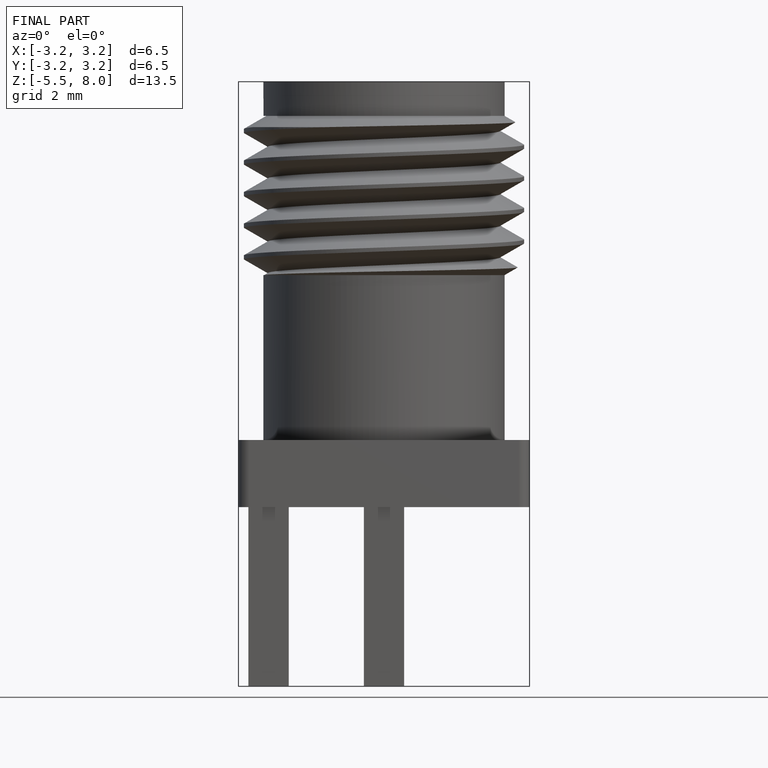
[diagram: finished part — front view with bounding-box wireframe]
